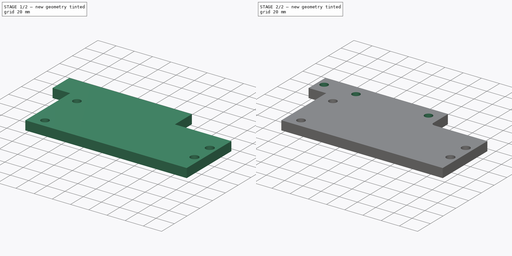
[diagram: build sequence overview — one tinted view per stage of 2, left to right]
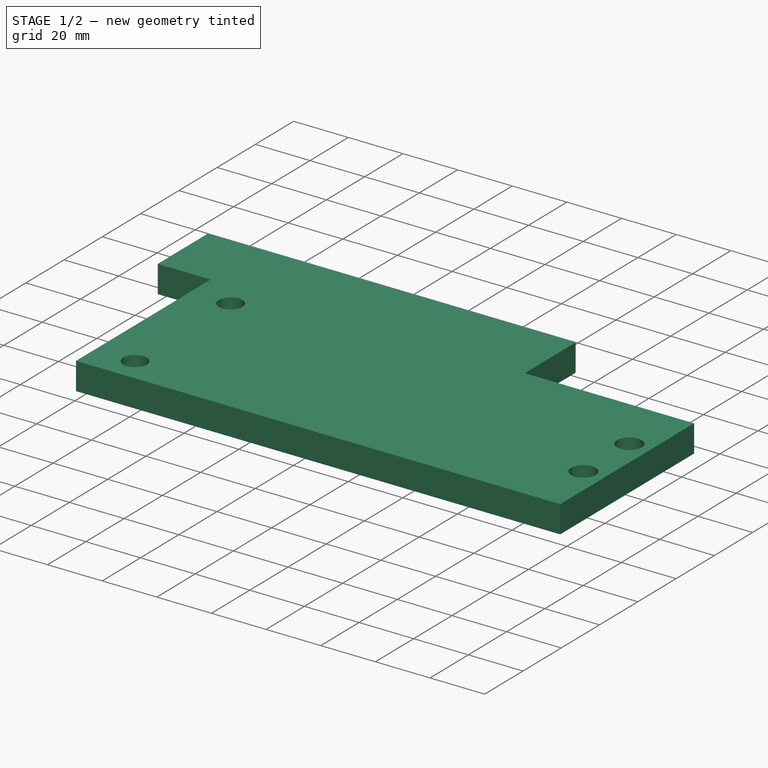
[diagram: stage 1 of 2 — iso view after this stage's code; geometry added in this stage tinted green]
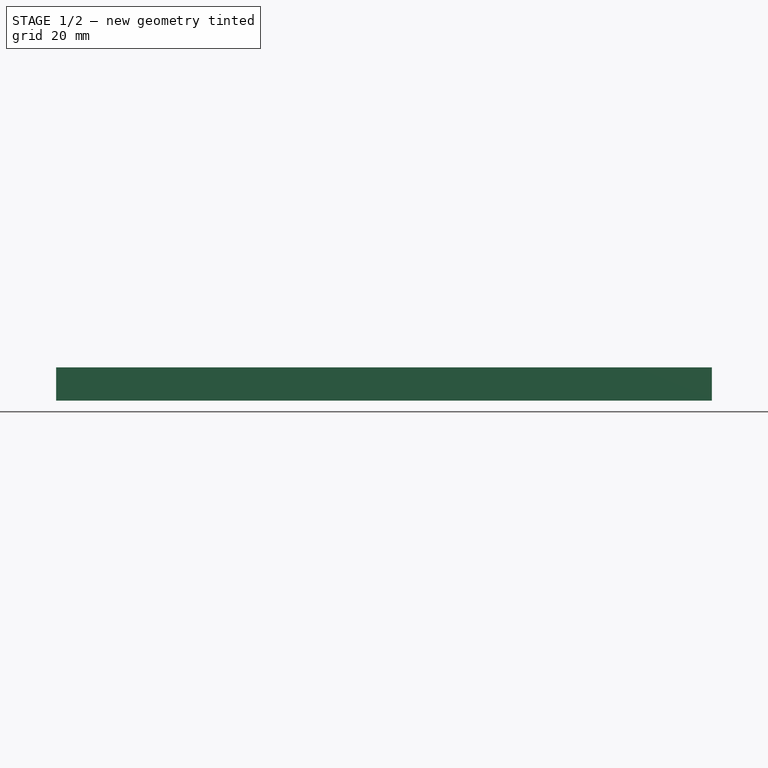
[diagram: stage 1 of 2 — front view after this stage's code; geometry added in this stage tinted green]
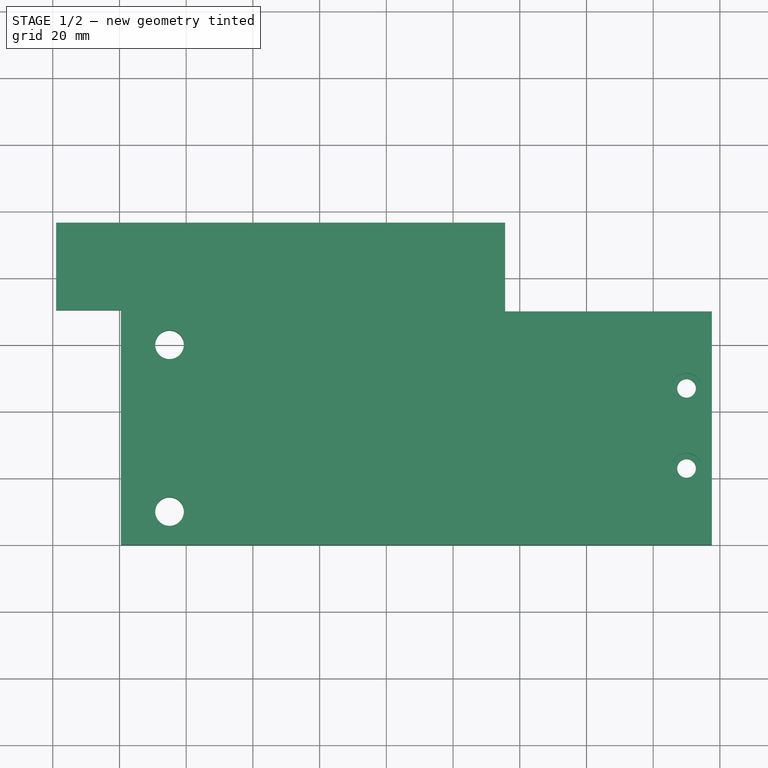
[diagram: stage 1 of 2 — top view after this stage's code; geometry added in this stage tinted green]
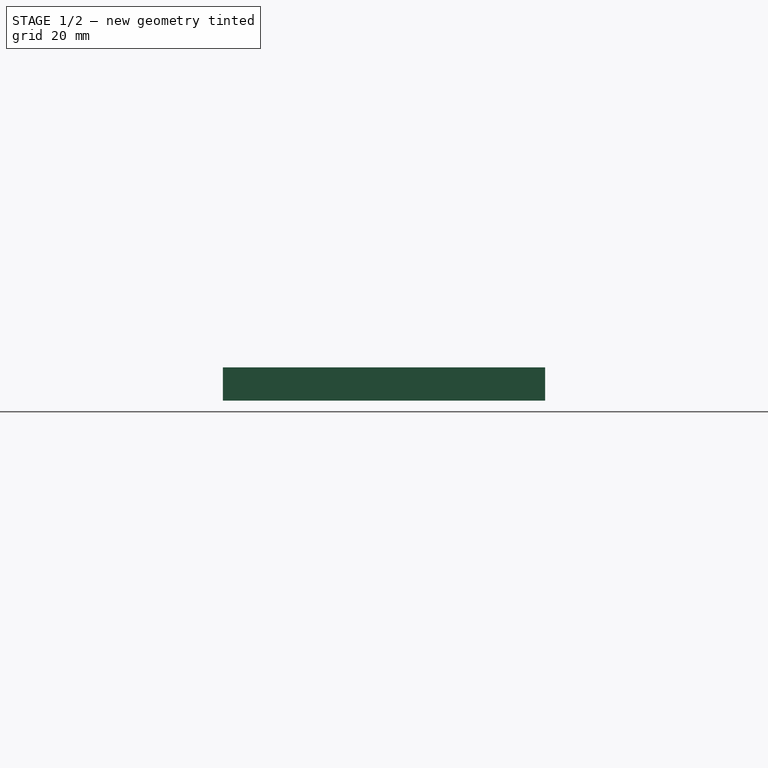
[diagram: stage 1 of 2 — right view after this stage's code; geometry added in this stage tinted green]
FCSTD DOCUMENT  (FreeCAD 1.0R39109 (Git))
Label: sway_motor_mount_rear_plate
License: All rights reserved
LicenseURL: https://en.wikipedia.org/wiki/All_rights_reserved
objects: Sketcher::SketchObject×3, PartDesign::Pocket×2, PartDesign::Pad×1, PartDesign::Fillet×1, PartDesign::Body×1
note: 19 computed .brp shape members not serialized (recipe doc carries the construction recipe); baked Part::Feature solids carry a one-line shape summary decoded from their .brp

FEATURE [Sketcher::SketchObject] Sketch
  ArcFitTolerance = 1e-06
  AttachmentSupport = -> [XY_Plane]
  FullyConstrained = true
  MakeInternals = false
  MapMode = 5
  sketch-geometry (20):
    g0: LineSegment [constr] StartX=0 StartY=0 StartZ=0 EndX=178 EndY=0 EndZ=0
    g1: LineSegment [constr] StartX=178 StartY=0 StartZ=0 EndX=178 EndY=70 EndZ=0
    g2: LineSegment [constr] StartX=178 StartY=70 StartZ=0 EndX=0 EndY=70 EndZ=0
    g3: LineSegment [constr] StartX=0 StartY=70 StartZ=0 EndX=0 EndY=0 EndZ=0
    g4: Circle CenterX=15 CenterY=60 CenterZ=0 NormalX=0 NormalY=0 NormalZ=1 AngleXU=0 Radius=4.3
    g5: Circle CenterX=15 CenterY=10 CenterZ=0 NormalX=0 NormalY=0 NormalZ=1 AngleXU=0 Radius=4.3
    g6: Circle CenterX=170 CenterY=47 CenterZ=0 NormalX=0 NormalY=0 NormalZ=1 AngleXU=0 Radius=2.8
    g7: Circle CenterX=170 CenterY=23 CenterZ=0 NormalX=0 NormalY=0 NormalZ=1 AngleXU=0 Radius=2.8
    g8: LineSegment StartX=0.4 StartY=0 StartZ=0 EndX=177.6 EndY=0 EndZ=0
    g9: LineSegment StartX=177.6 StartY=0 StartZ=0 EndX=177.6 EndY=70 EndZ=0
    g10: LineSegment StartX=0.4 StartY=70.4 StartZ=0 EndX=0.4 EndY=0 EndZ=0
    g11: LineSegment [constr] StartX=-19 StartY=97 StartZ=0 EndX=95.6 EndY=97 EndZ=0
    g12: LineSegment [constr] StartX=95.6 StartY=97 StartZ=0 EndX=95.6 EndY=177 EndZ=0
    g13: LineSegment [constr] StartX=95.6 StartY=177 StartZ=0 EndX=-19 EndY=177 EndZ=0
    g14: LineSegment [constr] StartX=-19 StartY=177 StartZ=0 EndX=-19 EndY=97 EndZ=0
    g15: LineSegment StartX=0.4 StartY=70.4 StartZ=0 EndX=-19 EndY=70.4 EndZ=0
    g16: LineSegment StartX=-19 StartY=70.4 StartZ=0 EndX=-19 EndY=96.6 EndZ=0
    g17: LineSegment StartX=-19 StartY=96.6 StartZ=0 EndX=115.6 EndY=96.6 EndZ=0
    g18: LineSegment StartX=115.6 StartY=96.6 StartZ=0 EndX=115.6 EndY=70 EndZ=0
    g19: LineSegment StartX=115.6 StartY=70 StartZ=0 EndX=177.6 EndY=70 EndZ=0
  constraints (59):
    c: Coincident(g0,g1)
    c: Coincident(g1,g2)
    c: Coincident(g2,g3)
    c: Coincident(g3,g0)
    c: Horizontal(g0)
    c: Horizontal(g2)
    c: Vertical(g1)
    c: Vertical(g3)
    c: Distance(g1,g3) = 178
    c: Distance(g0,g2) = 70
    c: Coincident(g0,g-1)
    c: DistanceX(g5) = 15
    c: DistanceX(g5,g4) = 0
    c: DistanceY(g5,g4) = 50
    c: Equal(g5,g4)
    c: Diameter(g5) = 8.6
    c: DistanceY(g0,g5) = 10
    c: DistanceX(g7,g0) = 8
    c: DistanceY(g7,g6) = 24
    c: DistanceX(g6,g7) = 0
    c: Diameter(g7) = 5.6
    c: Equal(g7,g6)
    c: DistanceY(g7) = 23
    c: Coincident(g8,g9)
    c: Coincident(g10,g8)
    c: Horizontal(g8)
    c: Vertical(g9)
    c: Vertical(g10)
    c: DistanceX(g8) = 0.4
    c: PointOnObject(g8,g-1)
    c: DistanceX(g8,g0) = 0.4
    c: Coincident(g11,g12)
    c: Coincident(g12,g13)
    c: Coincident(g13,g14)
    c: Horizontal(g11)
    c: Horizontal(g13)
    c: Vertical(g12)
    c: Vertical(g14)
    c: DistanceY(g2,g11) = 27
    c: DistanceX(g11,g2) = 19
    c: Coincident(g14,g11)
    c: DistanceY(g14,g14) = 80
    c: DistanceX(g13,g13) = 114.6
    c: DistanceY(g2,g10) = 0.4
    c: Coincident(g10,g15)
    c: Horizontal(g15)
    c: Coincident(g15,g16)
    c: Vertical(g16)
    c: Coincident(g16,g17)
    c: Horizontal(g17)
    c: PointOnObject(g9,g2)
    c: DistanceX(g16,g11) = 0
    c: DistanceY(g16,g11) = 0.4
    c: DistanceX(g11,g17) = 20
    c: Coincident(g17,g18)
    c: Vertical(g18)
    c: Coincident(g18,g19)
    c: Coincident(g19,g9)
    c: Horizontal(g19)
FEATURE [PartDesign::Pad] Pad
  Direction = (0,0,1)
  Length = 10
  Length2 = 10
  Profile = -> Sketch
  ReferenceAxis = -> Sketch [N_Axis]
  Refine = true
  Suppressed = false
  Type = 0
FEATURE [Sketcher::SketchObject] Sketch001
  ArcFitTolerance = 1e-06
  AttachmentSupport = -> [Pad]
  FullyConstrained = true
  MakeInternals = false
  MapMode = 5
  Placement = pos=(0,0,10) rot=(0,0,1;0rad)
  expr: Constraints[11] = Sketch.Constraints[11]
  expr: Constraints[12] = Sketch.Constraints[12]
  expr: Constraints[13] = Sketch.Constraints[13]
  expr: Constraints[15] = Sketch.Constraints[15]
  expr: Constraints[16] = Sketch.Constraints[16]
  expr: Constraints[17] = Sketch.Constraints[17]
  expr: Constraints[18] = Sketch.Constraints[18]
  expr: Constraints[19] = Sketch.Constraints[19]
  expr: Constraints[20] = Sketch.Constraints[20]
  expr: Constraints[22] = Sketch.Constraints[22]
  expr: Constraints[31] = Sketch.Constraints[28]
  expr: Constraints[34] = Sketch.Constraints[30]
  expr: Constraints[8] = Sketch.Constraints[8]
  expr: Constraints[9] = Sketch.Constraints[9]
  sketch-geometry (14):
    g0: LineSegment [constr] StartX=0 StartY=0 StartZ=0 EndX=178 EndY=0 EndZ=0
    g1: LineSegment [constr] StartX=178 StartY=0 StartZ=0 EndX=178 EndY=70 EndZ=0
    g2: LineSegment [constr] StartX=178 StartY=70 StartZ=0 EndX=0 EndY=70 EndZ=0
    g3: LineSegment [constr] StartX=0 StartY=70 StartZ=0 EndX=0 EndY=0 EndZ=0
    g4: Circle [constr] CenterX=15 CenterY=60 CenterZ=0 NormalX=0 NormalY=0 NormalZ=1 AngleXU=0 Radius=4.3
    g5: Circle [constr] CenterX=15 CenterY=10 CenterZ=0 NormalX=0 NormalY=0 NormalZ=1 AngleXU=0 Radius=4.3
    g6: Circle [constr] CenterX=170 CenterY=47 CenterZ=0 NormalX=0 NormalY=0 NormalZ=1 AngleXU=0 Radius=2.8
    g7: Circle [constr] CenterX=170 CenterY=23 CenterZ=0 NormalX=0 NormalY=0 NormalZ=1 AngleXU=0 Radius=2.8
    g8: LineSegment [constr] StartX=0.4 StartY=0 StartZ=0 EndX=177.6 EndY=0 EndZ=0
    g9: LineSegment [constr] StartX=177.6 StartY=0 StartZ=0 EndX=177.6 EndY=70 EndZ=0
    g10: LineSegment [constr] StartX=177.6 StartY=70 StartZ=0 EndX=0.4 EndY=70 EndZ=0
    g11: LineSegment [constr] StartX=0.4 StartY=70 StartZ=0 EndX=0.4 EndY=0 EndZ=0
    g12: Circle CenterX=170 CenterY=47 CenterZ=0 NormalX=0 NormalY=0 NormalZ=1 AngleXU=0 Radius=4.5
    g13: Circle CenterX=170 CenterY=23 CenterZ=0 NormalX=0 NormalY=0 NormalZ=1 AngleXU=0 Radius=4.5
  constraints (39):
    c: Coincident(g0,g1)
    c: Coincident(g1,g2)
    c: Coincident(g2,g3)
    c: Coincident(g3,g0)
    c: Horizontal(g0)
    c: Horizontal(g2)
    c: Vertical(g1)
    c: Vertical(g3)
    c: Distance(g1,g3) = 178
    c: Distance(g0,g2) = 70
    c: Coincident(g0,g-1)
    c: DistanceX(g5) = 15
    c: DistanceX(g5,g4) = 0
    c: DistanceY(g5,g4) = 50
    c: Equal(g5,g4)
    c: Diameter(g5) = 8.6
    c: DistanceY(g0,g5) = 10
    c: DistanceX(g7,g0) = 8
    c: DistanceY(g7,g6) = 24
    c: DistanceX(g6,g7) = 0
    c: Diameter(g7) = 5.6
    c: Equal(g7,g6)
    c: DistanceY(g7) = 23
    c: Coincident(g8,g9)
    c: Coincident(g9,g10)
    c: Coincident(g10,g11)
    c: Coincident(g11,g8)
    c: Horizontal(g8)
    c: Horizontal(g10)
    c: Vertical(g9)
    c: Vertical(g11)
    c: DistanceX(g8) = 0.4
    c: PointOnObject(g8,g-1)
    c: PointOnObject(g10,g2)
    c: DistanceX(g8,g0) = 0.4
    c: Coincident(g12,g6)
    c: Coincident(g13,g7)
    c: Diameter(g13) = 9
    c: Equal(g13,g12)
FEATURE [PartDesign::Pocket] Pocket
  BaseFeature = -> Pad
  Direction = (0,0,-1)
  Length = 5
  Length2 = 5
  Profile = -> Sketch001
  ReferenceAxis = -> Sketch001 [N_Axis]
  Refine = true
  Suppressed = false
  Type = 0
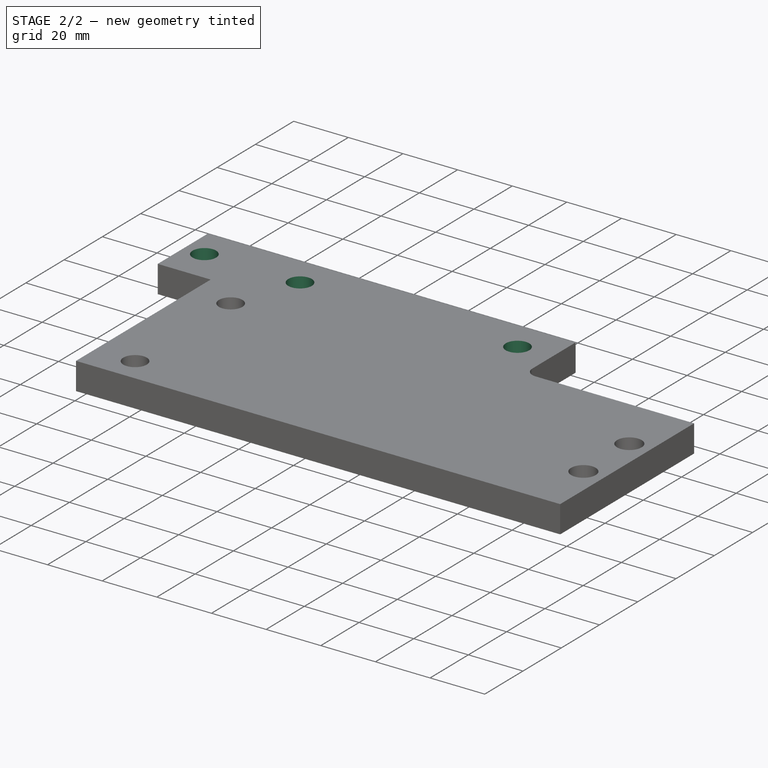
[diagram: stage 2 of 2 — iso view after this stage's code; geometry added in this stage tinted green]
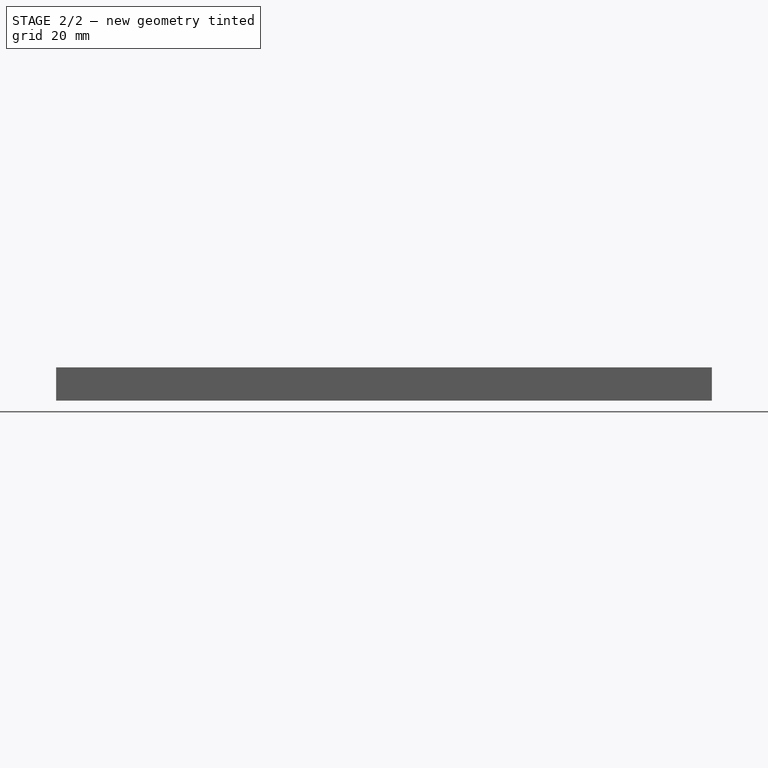
[diagram: stage 2 of 2 — front view after this stage's code; geometry added in this stage tinted green]
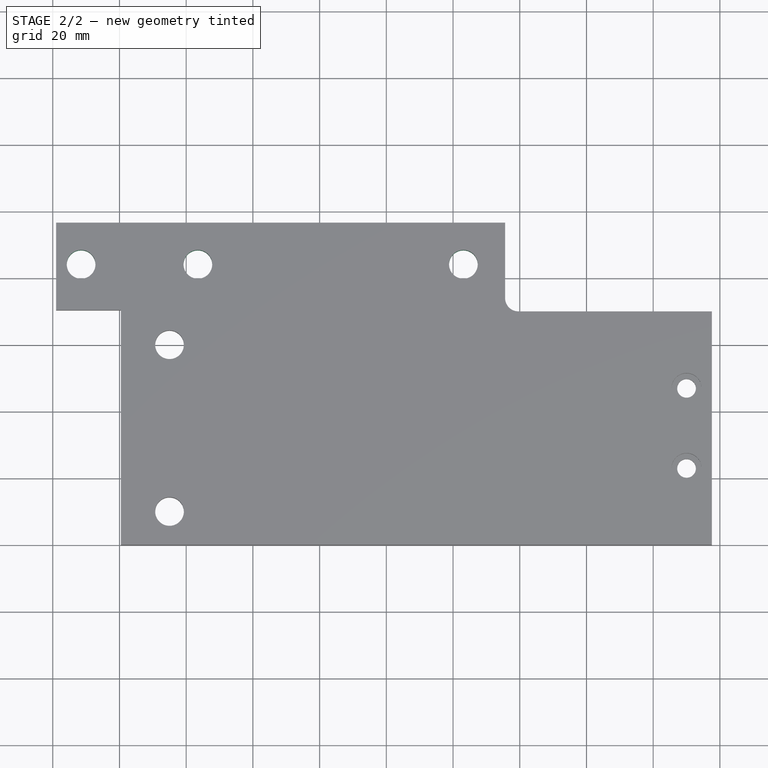
[diagram: stage 2 of 2 — top view after this stage's code; geometry added in this stage tinted green]
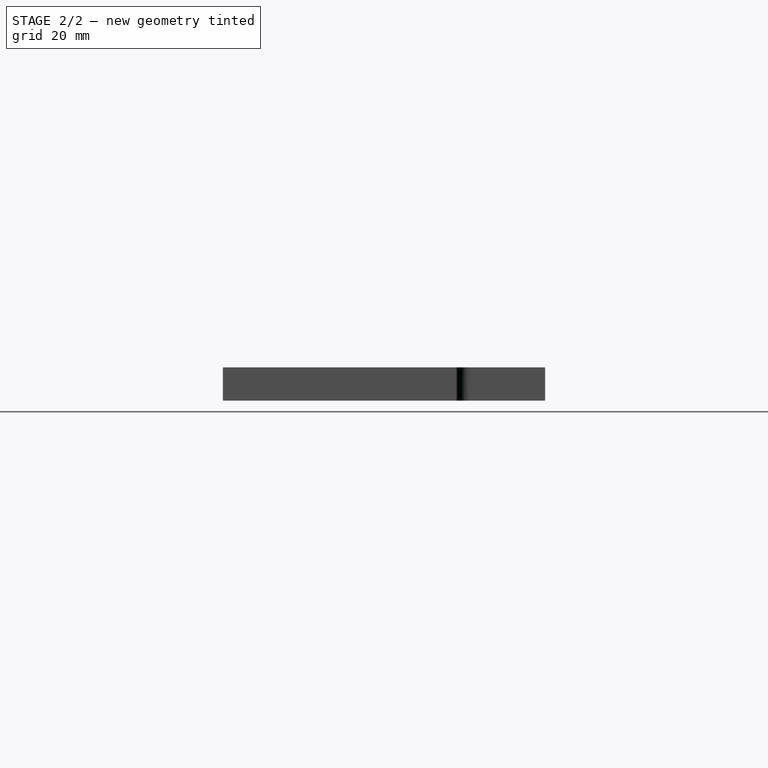
[diagram: stage 2 of 2 — right view after this stage's code; geometry added in this stage tinted green]
FEATURE [PartDesign::Fillet] Fillet
  Base = -> Pocket [Edge30]
  BaseFeature = -> Pocket
  Radius = 4
  Refine = true
  SupportTransform = false
  Suppressed = false
  UseAllEdges = false
FEATURE [Sketcher::SketchObject] Sketch002
  ArcFitTolerance = 1e-06
  AttachmentSupport = -> [Fillet]
  FullyConstrained = true
  MakeInternals = false
  MapMode = 5
  Placement = pos=(0,0,10) rot=(0,0,1;0rad)
  sketch-geometry (20):
    g0: LineSegment [constr] StartX=-19 StartY=96.6 StartZ=0 EndX=95.6 EndY=96.6 EndZ=0
    g1: LineSegment [constr] StartX=95.6 StartY=96.6 StartZ=0 EndX=95.6 EndY=176.6 EndZ=0
    g2: LineSegment [constr] StartX=95.6 StartY=176.6 StartZ=0 EndX=-19 EndY=176.6 EndZ=0
    g3: LineSegment [constr] StartX=-19 StartY=176.6 StartZ=0 EndX=-19 EndY=96.6 EndZ=0
    g4: LineSegment [constr] StartX=-19 StartY=96.6 StartZ=0 EndX=-19 EndY=71.6 EndZ=0
    g5: LineSegment [constr] StartX=-19 StartY=71.6 StartZ=0 EndX=-4 EndY=71.6 EndZ=0
    g6: LineSegment [constr] StartX=-4 StartY=71.6 StartZ=0 EndX=-4 EndY=96.6 EndZ=0
    g7: LineSegment [constr] StartX=11 StartY=96.6 StartZ=0 EndX=11 EndY=71.6 EndZ=0
    g8: LineSegment [constr] StartX=11 StartY=71.6 StartZ=0 EndX=36 EndY=71.6 EndZ=0
    g9: LineSegment [constr] StartX=36 StartY=71.6 StartZ=0 EndX=36 EndY=96.6 EndZ=0
    g10: LineSegment [constr] StartX=95.6 StartY=96.6 StartZ=0 EndX=95.6 EndY=71.6 EndZ=0
    g11: LineSegment [constr] StartX=95.6 StartY=71.6 StartZ=0 EndX=110.6 EndY=71.6 EndZ=0
    g12: LineSegment [constr] StartX=110.6 StartY=71.6 StartZ=0 EndX=110.6 EndY=96.6 EndZ=0
    g13: LineSegment [constr] StartX=110.6 StartY=96.6 StartZ=0 EndX=95.6 EndY=96.6 EndZ=0
    g14: LineSegment [constr] StartX=-19 StartY=96.6 StartZ=0 EndX=-4 EndY=71.6 EndZ=0
    g15: LineSegment [constr] StartX=11 StartY=96.6 StartZ=0 EndX=36 EndY=71.6 EndZ=0
    g16: LineSegment [constr] StartX=95.6 StartY=96.6 StartZ=0 EndX=110.6 EndY=71.6 EndZ=0
    g17: Circle CenterX=-11.5 CenterY=84.1 CenterZ=0 NormalX=0 NormalY=0 NormalZ=1 AngleXU=0 Radius=4.3
    g18: Circle CenterX=23.5 CenterY=84.1 CenterZ=0 NormalX=0 NormalY=0 NormalZ=1 AngleXU=0 Radius=4.3
    g19: Circle CenterX=103.1 CenterY=84.1 CenterZ=0 NormalX=0 NormalY=0 NormalZ=1 AngleXU=0 Radius=4.3
  constraints (54):
    c: Coincident(g0,g1)
    c: Coincident(g1,g2)
    c: Coincident(g2,g3)
    c: Coincident(g3,g0)
    c: Horizontal(g0)
    c: Horizontal(g2)
    c: Vertical(g1)
    c: Vertical(g3)
    c: Distance(g1,g3) = 114.6
    c: Distance(g0,g2) = 80
    c: DistanceY(g0) = 96.6
    c: DistanceX(g0) = -19
    c: Coincident(g0,g4)
    c: Vertical(g4)
    c: Coincident(g4,g5)
    c: Horizontal(g5)
    c: Coincident(g5,g6)
    c: PointOnObject(g6,g0)
    c: Vertical(g6)
    c: PointOnObject(g7,g0)
    c: Vertical(g7)
    c: Coincident(g7,g8)
    c: Horizontal(g8)
    c: Coincident(g8,g9)
    c: PointOnObject(g9,g0)
    c: Vertical(g9)
    c: Coincident(g0,g10)
    c: Vertical(g10)
    c: Coincident(g10,g11)
    c: Horizontal(g11)
    c: Coincident(g11,g12)
    c: Vertical(g12)
    c: Coincident(g12,g13)
    c: Coincident(g13,g10)
    c: Horizontal(g13)
    c: DistanceY(g4,g4) = 25
    c: Equal(g6,g7)
    c: Equal(g7,g10)
    c: DistanceX(g5,g5) = 15
    c: DistanceX(g8,g8) = 25
    c: DistanceX(g0,g7) = 30
    c: DistanceX(g11,g11) = 15
    c: Coincident(g14,g0)
    c: Coincident(g14,g5)
    c: Coincident(g15,g7)
    c: Coincident(g15,g8)
    c: Coincident(g16,g0)
    c: Coincident(g16,g11)
    c: Diameter(g17) = 8.6
    c: Symmetric(g14,g14,g17)
    c: Symmetric(g15,g15,g18)
    c: Symmetric(g16,g16,g19)
    c: Equal(g19,g18)
    c: Equal(g18,g17)
FEATURE [PartDesign::Pocket] Pocket001
  BaseFeature = -> Fillet
  Direction = (0,0,-1)
  Length = 5
  Length2 = 5
  Profile = -> Sketch002
  ReferenceAxis = -> Sketch002 [N_Axis]
  Refine = true
  Suppressed = false
  Type = 1
FEATURE [PartDesign::Body] Body  label="sway_motor_mount_rear_plate"
  AllowCompound = false
  Group = -> [Sketch,Pad,Sketch001,Pocket,Fillet,Sketch002,Pocket001]
  Origin = -> Origin
  Tip = -> Pocket001
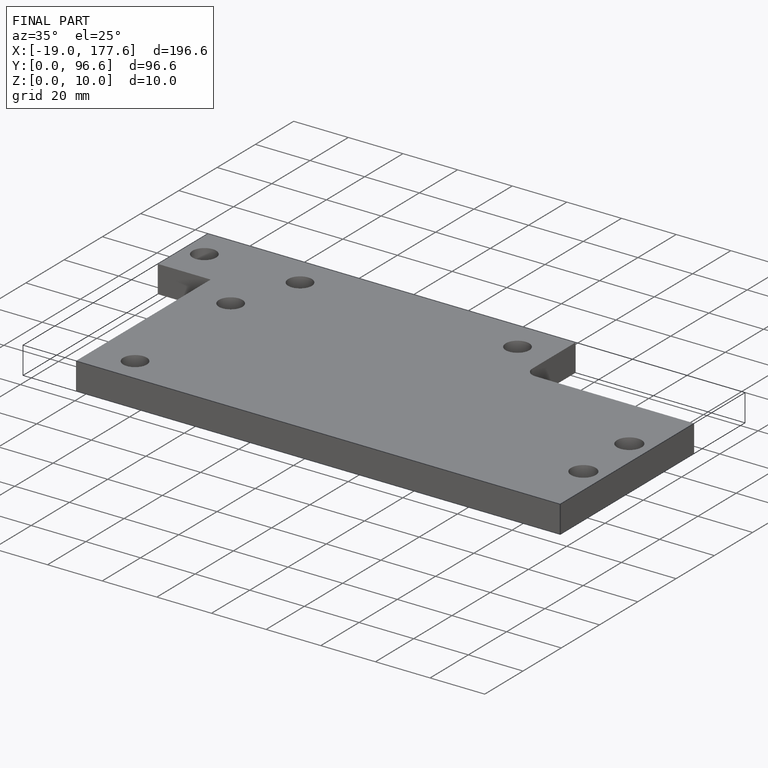
[diagram: finished part — iso view with bounding-box wireframe]
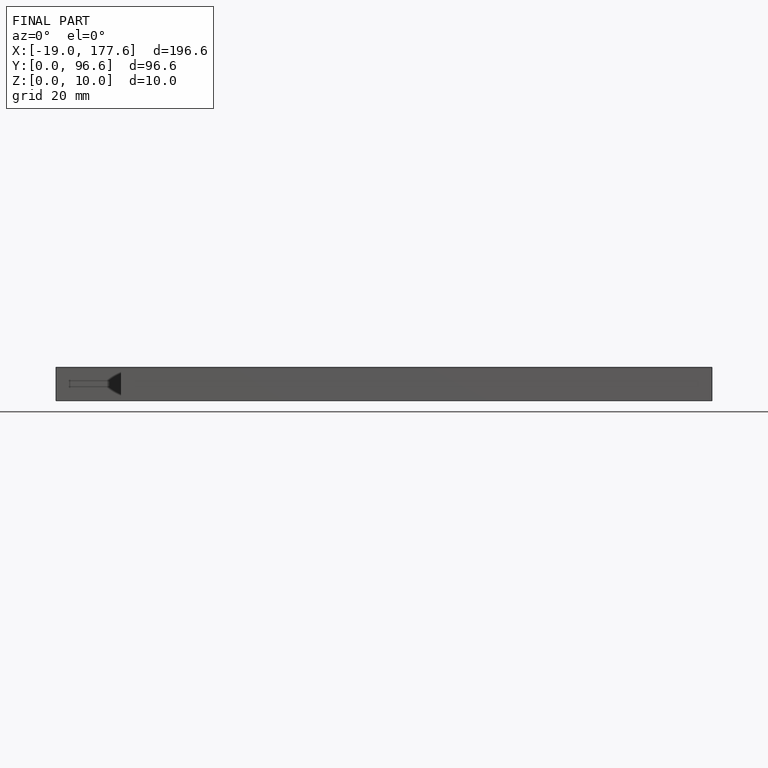
[diagram: finished part — front view with bounding-box wireframe]
